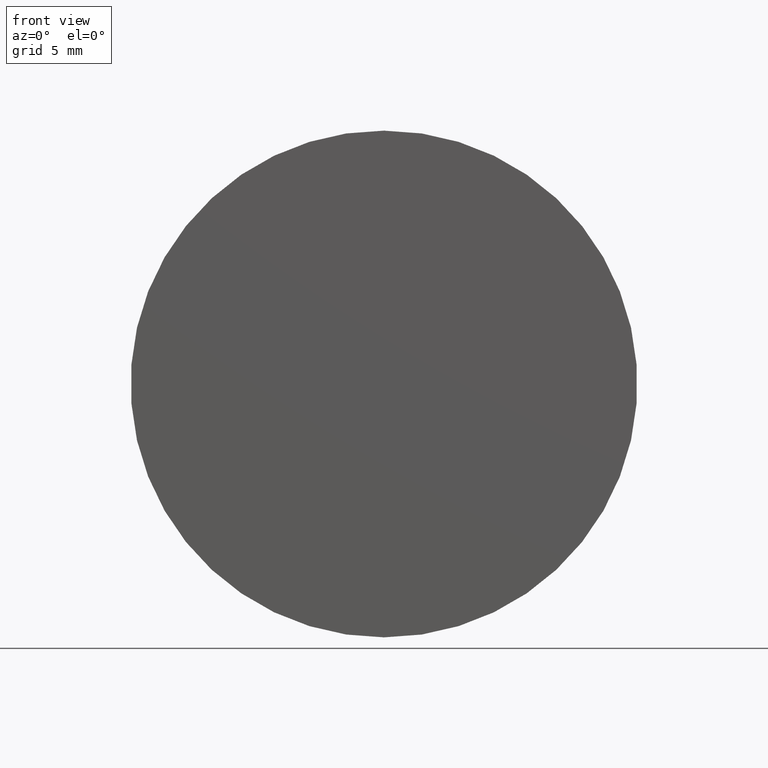
[diagram: clean part render]
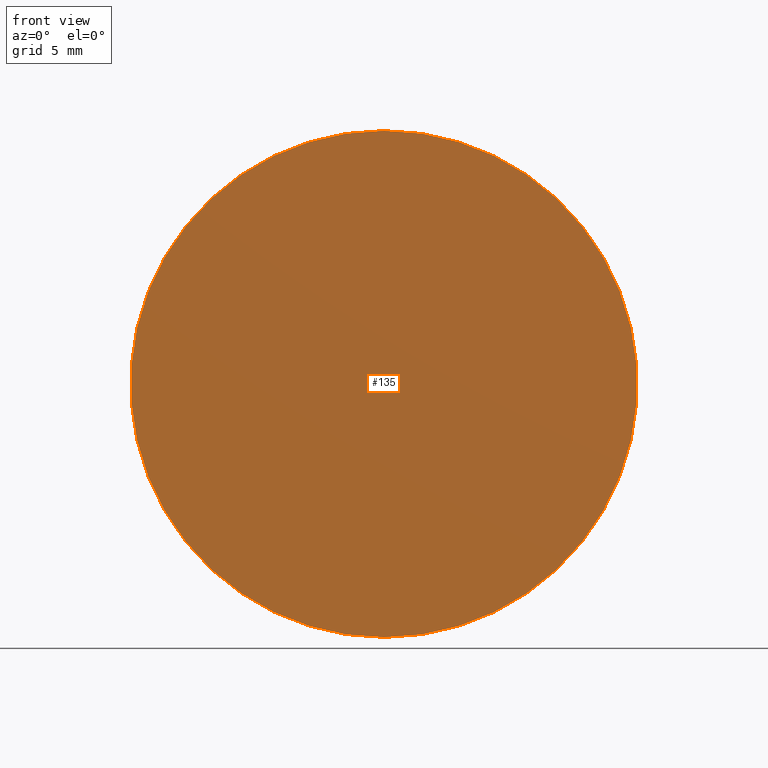
[diagram: same view with one face highlighted and labeled with its STEP entity id]
A machine part, front view. The second image highlights one B-rep face of the part: STEP entity #135.
In plain terms, the highlighted planar face has unit normal (0, -1, 0).
Its self-contained STEP definition (entity closure, byte-faithful):
#1 = DIRECTION ( 'NONE',  ( 0.000000000000000000, 0.000000000000000000, 1.000000000000000000 ) ) ;
#6 = CARTESIAN_POINT ( 'NONE',  ( 0.000000000000000000, -1.734723475976807094E-15, 0.000000000000000000 ) ) ;
#19 = CARTESIAN_POINT ( 'NONE',  ( 0.000000000000000000, -9.184850993605147944E-16, 0.000000000000000000 ) ) ;
#33 = DIRECTION ( 'NONE',  ( -0.000000000000000000, 1.000000000000000000, -0.000000000000000000 ) ) ;
#41 = VERTEX_POINT ( 'NONE', #131 ) ;
#45 = PLANE ( 'NONE',  #98 ) ;
#54 = EDGE_LOOP ( 'NONE', ( #70, #99 ) ) ;
#68 = AXIS2_PLACEMENT_3D ( 'NONE', #6, #33, #1 ) ;
#70 = ORIENTED_EDGE ( 'NONE', *, *, #89, .F. ) ;
#81 = CIRCLE ( 'NONE', #185, 15.00000000000000000 ) ;
#89 = EDGE_CURVE ( 'NONE', #177, #41, #158, .T. ) ;
#98 = AXIS2_PLACEMENT_3D ( 'NONE', #19, #137, #184 ) ;
#99 = ORIENTED_EDGE ( 'NONE', *, *, #107, .F. ) ;
#107 = EDGE_CURVE ( 'NONE', #41, #177, #81, .T. ) ;
#109 = DIRECTION ( 'NONE',  ( -0.000000000000000000, 1.000000000000000000, -0.000000000000000000 ) ) ;
#125 = CARTESIAN_POINT ( 'NONE',  ( 0.000000000000000000, -1.734723475976807094E-15, 15.00000000000000000 ) ) ;
#128 = DIRECTION ( 'NONE',  ( 0.000000000000000000, 0.000000000000000000, 1.000000000000000000 ) ) ;
#131 = CARTESIAN_POINT ( 'NONE',  ( 1.836970198721029589E-15, -1.734723475976807094E-15, -15.00000000000000000 ) ) ;
#135 = ADVANCED_FACE ( 'NONE', ( #200 ), #45, .T. ) ;
#137 = DIRECTION ( 'NONE',  ( 0.000000000000000000, -1.000000000000000000, 0.000000000000000000 ) ) ;
#158 = CIRCLE ( 'NONE', #68, 15.00000000000000000 ) ;
#177 = VERTEX_POINT ( 'NONE', #125 ) ;
#183 = CARTESIAN_POINT ( 'NONE',  ( 0.000000000000000000, -1.734723475976807094E-15, 0.000000000000000000 ) ) ;
#184 = DIRECTION ( 'NONE',  ( 0.000000000000000000, -0.000000000000000000, -1.000000000000000000 ) ) ;
#185 = AXIS2_PLACEMENT_3D ( 'NONE', #183, #109, #128 ) ;
#200 = FACE_OUTER_BOUND ( 'NONE', #54, .T. ) ;